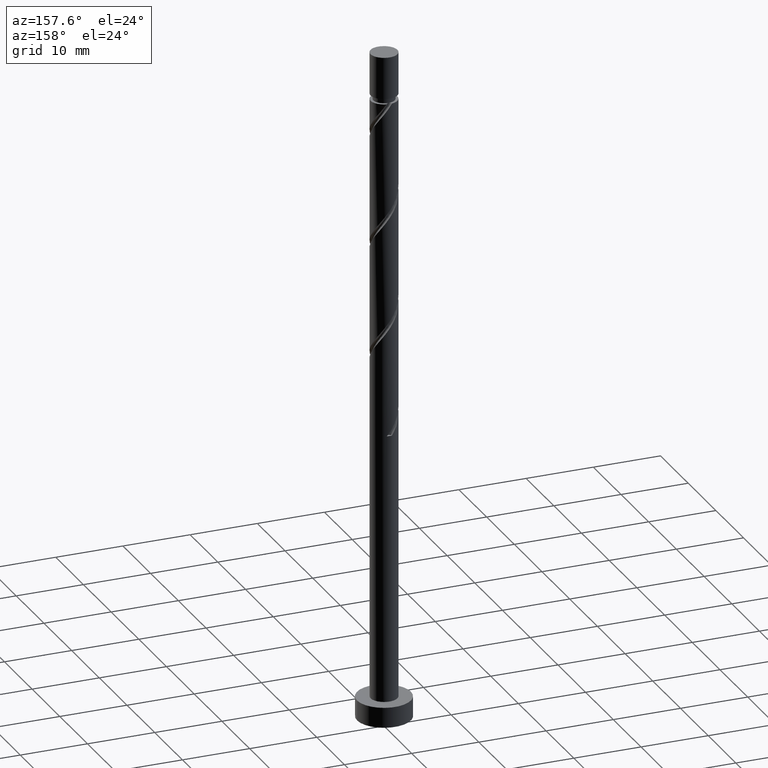
[diagram: clean part render]
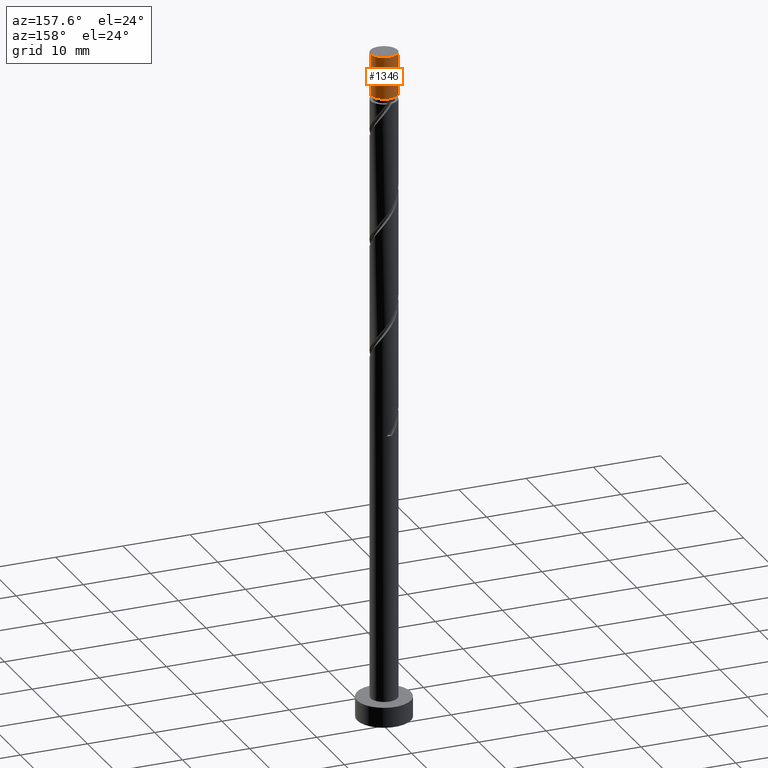
[diagram: same view with one face highlighted and labeled with its STEP entity id]
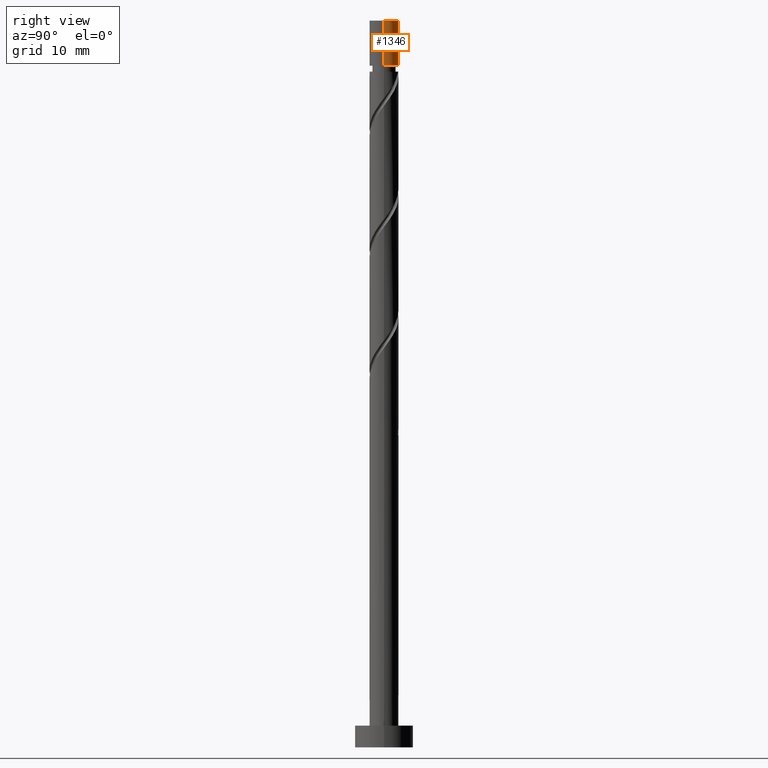
[diagram: same view with one face highlighted and labeled with its STEP entity id]
A machine part, auxiliary view. The second image highlights one B-rep face of the part: STEP entity #1346.
A second angle (right view) of the same face is appended — the face is thin or edge-on in the first view.
In plain terms, the highlighted cylindrical surface (edge-blend (fillet) strip) has radius 2 mm, axis along (-0, -0, -1).
Its self-contained STEP definition (entity closure, byte-faithful):
#7 = LINE ( 'NONE', #148, #1465 ) ;
#54 = AXIS2_PLACEMENT_3D ( 'NONE', #434, #308, #1353 ) ;
#148 = CARTESIAN_POINT ( 'NONE',  ( -2.000000000000000000, 0.000000000000000000, 100.0000000000000000 ) ) ;
#192 = CARTESIAN_POINT ( 'NONE',  ( 2.000000000000000000, 2.449293598294705921E-16, 100.0000000000000000 ) ) ;
#253 = DIRECTION ( 'NONE',  ( -1.000000000000000000, 0.000000000000000000, 0.000000000000000000 ) ) ;
#283 = DIRECTION ( 'NONE',  ( -1.000000000000000000, 0.000000000000000000, 0.000000000000000000 ) ) ;
#308 = DIRECTION ( 'NONE',  ( 0.000000000000000000, 0.000000000000000000, 1.000000000000000000 ) ) ;
#364 = DIRECTION ( 'NONE',  ( -0.000000000000000000, -0.000000000000000000, -1.000000000000000000 ) ) ;
#408 = CARTESIAN_POINT ( 'NONE',  ( 0.000000000000000000, 0.000000000000000000, 100.0000000000000000 ) ) ;
#434 = CARTESIAN_POINT ( 'NONE',  ( 0.000000000000000000, 0.000000000000000000, 100.0000000000000000 ) ) ;
#473 = DIRECTION ( 'NONE',  ( -0.000000000000000000, -0.000000000000000000, -1.000000000000000000 ) ) ;
#487 = CIRCLE ( 'NONE', #1208, 2.000000000000000888 ) ;
#503 = FACE_OUTER_BOUND ( 'NONE', #900, .T. ) ;
#568 = EDGE_CURVE ( 'NONE', #938, #711, #1267, .T. ) ;
#586 = CIRCLE ( 'NONE', #54, 2.000000000000000000 ) ;
#679 = CARTESIAN_POINT ( 'NONE',  ( 2.000000000000000888, 2.449293598294706907E-16, 93.78607412278005029 ) ) ;
#693 = EDGE_CURVE ( 'NONE', #938, #1107, #586, .T. ) ;
#711 = VERTEX_POINT ( 'NONE', #679 ) ;
#818 = ORIENTED_EDGE ( 'NONE', *, *, #693, .F. ) ;
#842 = DIRECTION ( 'NONE',  ( -0.000000000000000000, -0.000000000000000000, -1.000000000000000000 ) ) ;
#849 = CYLINDRICAL_SURFACE ( 'NONE', #1069, 2.000000000000000000 ) ;
#900 = EDGE_LOOP ( 'NONE', ( #818, #1334, #1209, #1085 ) ) ;
#935 = CARTESIAN_POINT ( 'NONE',  ( -2.000000000000000888, 0.000000000000000000, 93.78607412278005029 ) ) ;
#938 = VERTEX_POINT ( 'NONE', #192 ) ;
#942 = CARTESIAN_POINT ( 'NONE',  ( 0.000000000000000000, 0.000000000000000000, 93.78607412278005029 ) ) ;
#981 = DIRECTION ( 'NONE',  ( -0.000000000000000000, -0.000000000000000000, -1.000000000000000000 ) ) ;
#1041 = EDGE_CURVE ( 'NONE', #1078, #711, #487, .T. ) ;
#1063 = EDGE_CURVE ( 'NONE', #1107, #1078, #7, .T. ) ;
#1069 = AXIS2_PLACEMENT_3D ( 'NONE', #408, #981, #283 ) ;
#1078 = VERTEX_POINT ( 'NONE', #935 ) ;
#1085 = ORIENTED_EDGE ( 'NONE', *, *, #1063, .F. ) ;
#1107 = VERTEX_POINT ( 'NONE', #1290 ) ;
#1208 = AXIS2_PLACEMENT_3D ( 'NONE', #942, #473, #253 ) ;
#1209 = ORIENTED_EDGE ( 'NONE', *, *, #1041, .F. ) ;
#1232 = VECTOR ( 'NONE', #364, 1000.000000000000000 ) ;
#1267 = LINE ( 'NONE', #1361, #1232 ) ;
#1290 = CARTESIAN_POINT ( 'NONE',  ( -2.000000000000000000, 0.000000000000000000, 100.0000000000000000 ) ) ;
#1334 = ORIENTED_EDGE ( 'NONE', *, *, #568, .T. ) ;
#1346 = ADVANCED_FACE ( 'NONE', ( #503 ), #849, .T. ) ;
#1353 = DIRECTION ( 'NONE',  ( 1.000000000000000000, 0.000000000000000000, 0.000000000000000000 ) ) ;
#1361 = CARTESIAN_POINT ( 'NONE',  ( 2.000000000000000000, 2.449293598294705921E-16, 100.0000000000000000 ) ) ;
#1465 = VECTOR ( 'NONE', #842, 1000.000000000000000 ) ;